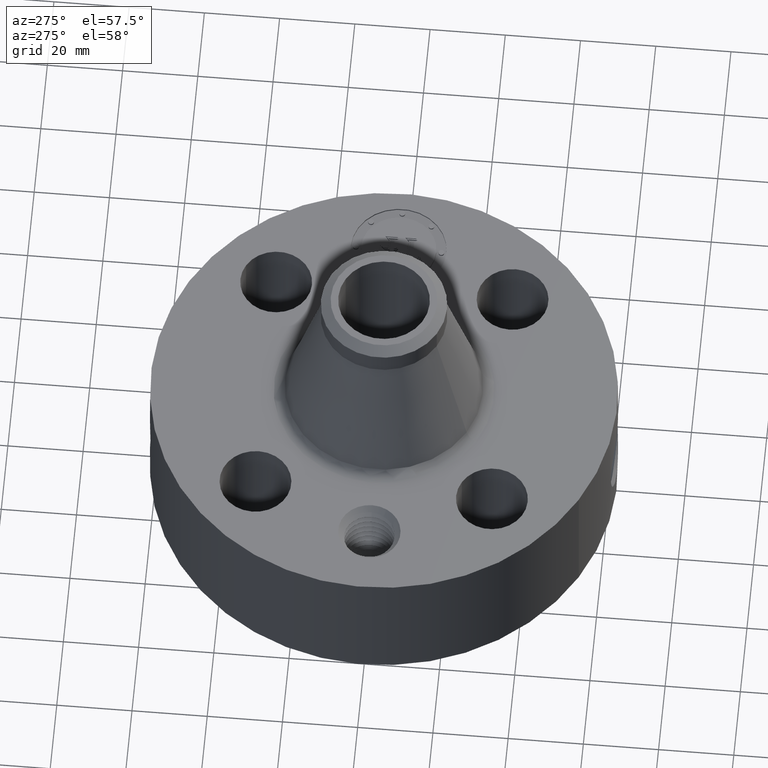
[diagram: clean part render]
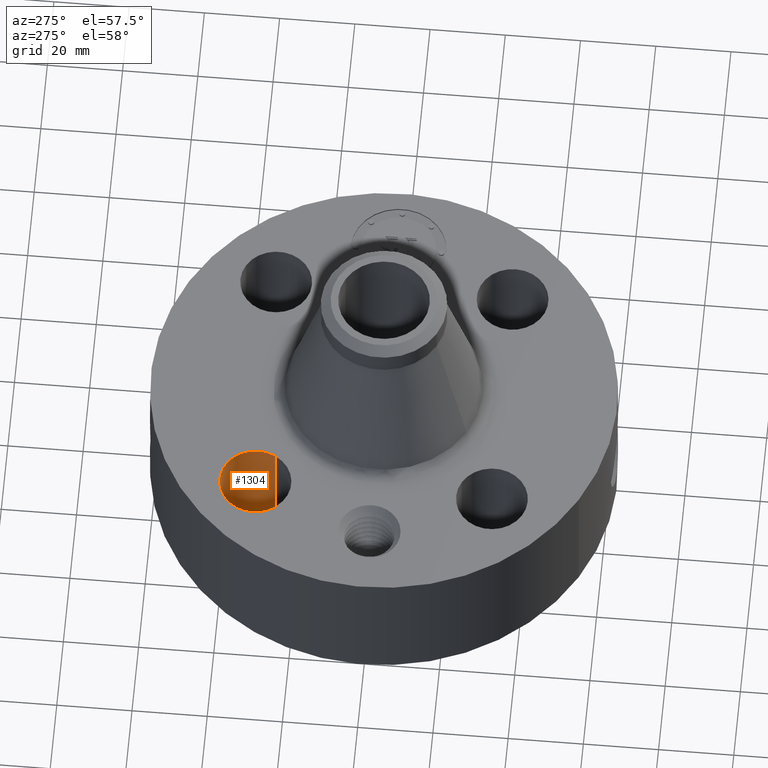
[diagram: same view with one face highlighted and labeled with its STEP entity id]
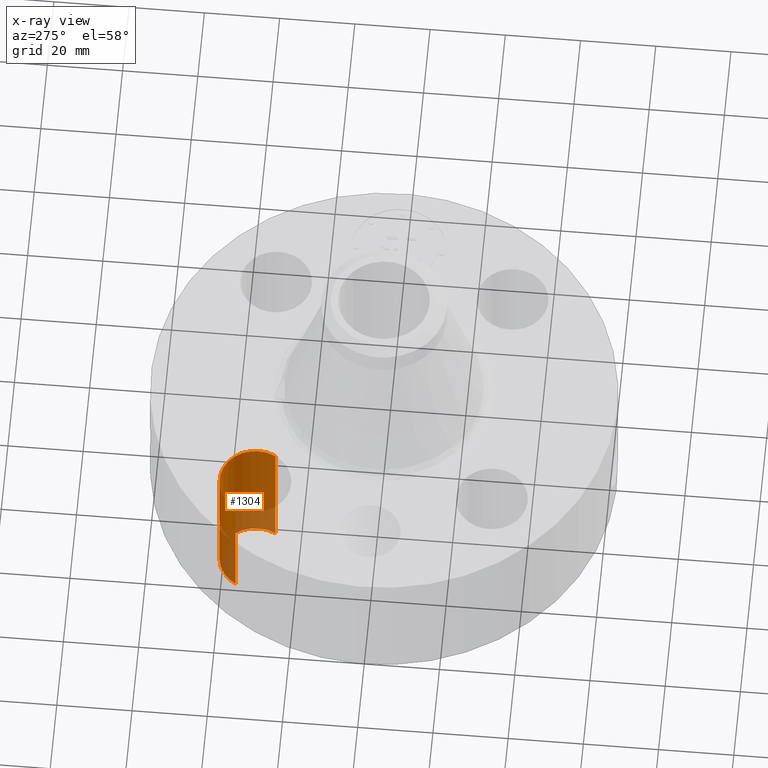
[diagram: x-ray of the same camera — body ghosted, the highlighted face saturated]
A machine part, auxiliary view. The second image highlights one B-rep face of the part: STEP entity #1304.
The next image is the same camera in x-ray: the body ghosted, the highlighted face saturated — about 30% of this face is hidden behind the body in this view.
In plain terms, the highlighted cylindrical surface (edge-blend (fillet) strip) has radius 9.525 mm, axis along (-0, 0, -1).
Its self-contained STEP definition (entity closure, byte-faithful):
#290=AXIS2_PLACEMENT_3D('Circle Axis2P3D',#288,#289,$) ;
#529=AXIS2_PLACEMENT_3D('Circle Axis2P3D',#527,#528,$) ;
#1279=AXIS2_PLACEMENT_3D('Cylinder Axis2P3D',#1276,#1277,#1278) ;
#283=CARTESIAN_POINT('Vertex',(-0.908343406371,1.0576522901,0.250000000001)) ;
#285=CARTESIAN_POINT('Vertex',(-1.56653032779,1.41722144406,0.250000000001)) ;
#288=CARTESIAN_POINT('Axis2P3D Location',(-1.23743686708,1.23743686708,0.250000000001)) ;
#527=CARTESIAN_POINT('Axis2P3D Location',(-1.23743686708,1.23743686708,1.75000000001)) ;
#531=CARTESIAN_POINT('Vertex',(-1.56653032779,1.41722144406,1.75000000001)) ;
#533=CARTESIAN_POINT('Vertex',(-0.908343406371,1.0576522901,1.75000000001)) ;
#1276=CARTESIAN_POINT('Axis2P3D Location',(-1.23743686708,1.23743686708,1.74606299213)) ;
#1281=CARTESIAN_POINT('Line Origine',(-0.908343406371,1.0576522901,1.)) ;
#1286=CARTESIAN_POINT('Line Origine',(-1.56653032779,1.41722144406,1.)) ;
#289=DIRECTION('Axis2P3D Direction',(0.,0.,-0.0393700787402)) ;
#528=DIRECTION('Axis2P3D Direction',(0.,0.,-0.0393700787402)) ;
#1277=DIRECTION('Axis2P3D Direction',(-0.,0.,-0.0393700787402)) ;
#1278=DIRECTION('Axis2P3D XDirection',(-0.0345504945626,0.0188750212049,0.)) ;
#1282=DIRECTION('Vector Direction',(0.,0.,-0.0393700787402)) ;
#1287=DIRECTION('Vector Direction',(0.,0.,-0.0393700787402)) ;
#1283=VECTOR('Line Direction',#1282,0.0393700787402) ;
#1288=VECTOR('Line Direction',#1287,0.0393700787402) ;
#1299=ORIENTED_EDGE('',*,*,#1290,.F.) ;
#1300=ORIENTED_EDGE('',*,*,#292,.T.) ;
#1301=ORIENTED_EDGE('',*,*,#1285,.T.) ;
#1302=ORIENTED_EDGE('',*,*,#535,.F.) ;
#1304=ADVANCED_FACE('PartBody',(#1303),#1280,.F.) ;
#291=CIRCLE('generated circle',#290,0.375000000002) ;
#530=CIRCLE('generated circle',#529,0.375000000002) ;
#1280=CYLINDRICAL_SURFACE('generated cylinder',#1279,0.375000000002) ;
#292=EDGE_CURVE('',#286,#284,#291,.T.) ;
#535=EDGE_CURVE('',#532,#534,#530,.T.) ;
#1285=EDGE_CURVE('',#284,#534,#1284,.F.) ;
#1290=EDGE_CURVE('',#286,#532,#1289,.F.) ;
#1298=EDGE_LOOP('',(#1299,#1300,#1301,#1302)) ;
#1303=FACE_OUTER_BOUND('',#1298,.T.) ;
#1284=LINE('Line',#1281,#1283) ;
#1289=LINE('Line',#1286,#1288) ;
#284=VERTEX_POINT('',#283) ;
#286=VERTEX_POINT('',#285) ;
#532=VERTEX_POINT('',#531) ;
#534=VERTEX_POINT('',#533) ;